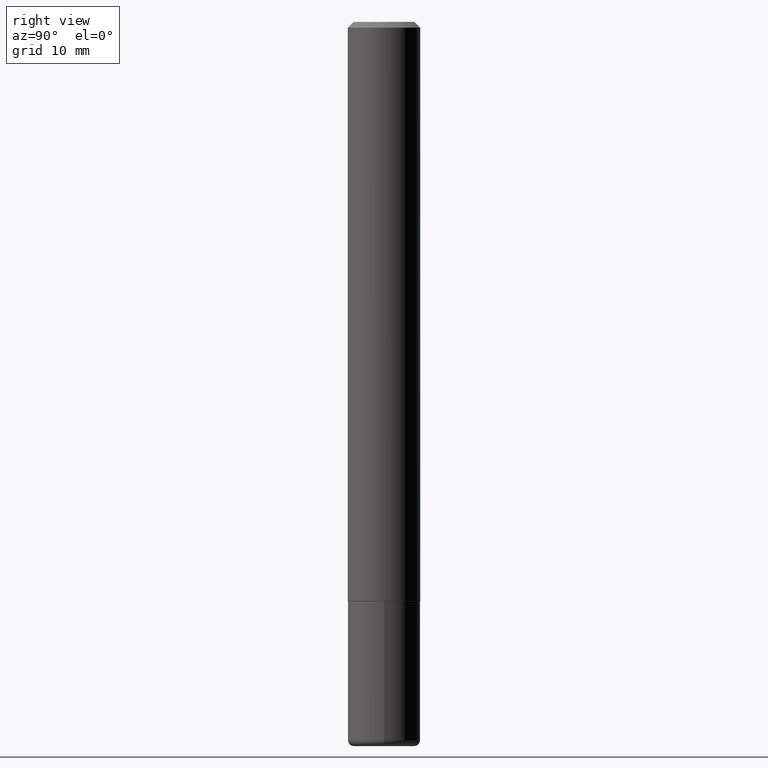
[diagram: clean part render]
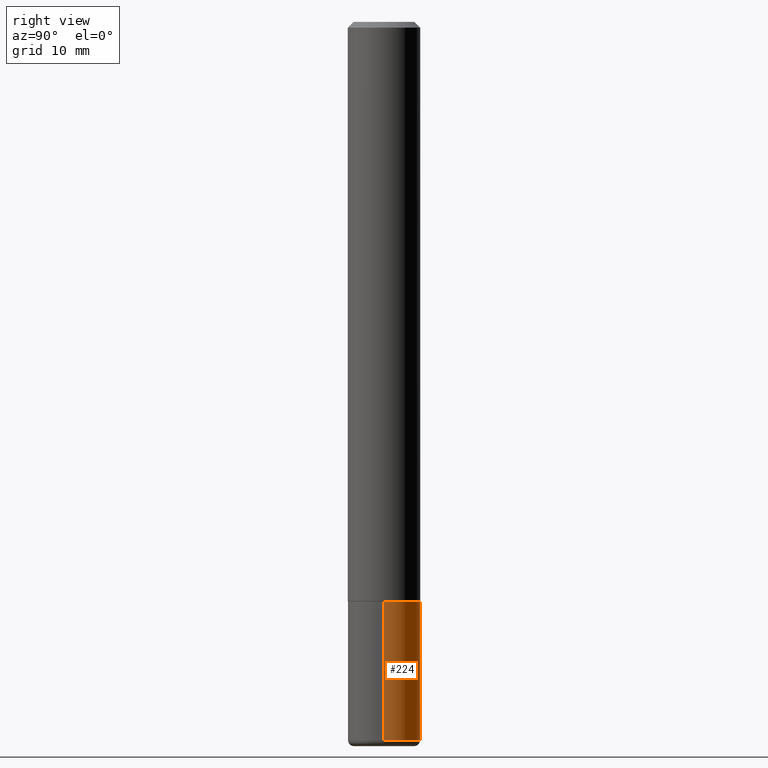
[diagram: same view with one face highlighted and labeled with its STEP entity id]
A machine part, right view. The second image highlights one B-rep face of the part: STEP entity #224.
In plain terms, the highlighted cylindrical surface (edge-blend (fillet) strip) has radius 3.175 mm, axis along (-0, 0, 1).
Its self-contained STEP definition (entity closure, byte-faithful):
#7 = LINE ( 'NONE', #265, #300 ) ;
#18 = CARTESIAN_POINT ( 'NONE',  ( 0.1250000000000000278, -7.855833012397075293E-15, -2.000000000000000000 ) ) ;
#19 = CARTESIAN_POINT ( 'NONE',  ( 4.890937612370273194E-29, -6.982962677686291165E-15, -2.000000000000000000 ) ) ;
#29 = CARTESIAN_POINT ( 'NONE',  ( -0.1249999999999999861, -7.770695300630876412E-15, -2.480000000000000426 ) ) ;
#33 = DIRECTION ( 'NONE',  ( 1.000000000000000000, -6.982962677686261189E-15, 0.000000000000000000 ) ) ;
#70 = VECTOR ( 'NONE', #138, 39.37007874015748143 ) ;
#71 = AXIS2_PLACEMENT_3D ( 'NONE', #19, #178, #103 ) ;
#81 = AXIS2_PLACEMENT_3D ( 'NONE', #404, #276, #145 ) ;
#101 = CIRCLE ( 'NONE', #117, 0.1250000000000000278 ) ;
#102 = ORIENTED_EDGE ( 'NONE', *, *, #209, .T. ) ;
#103 = DIRECTION ( 'NONE',  ( 1.000000000000000000, -6.982962677686269077E-15, 0.000000000000000000 ) ) ;
#117 = AXIS2_PLACEMENT_3D ( 'NONE', #277, #190, #33 ) ;
#121 = EDGE_LOOP ( 'NONE', ( #191, #102, #402, #264 ) ) ;
#138 = DIRECTION ( 'NONE',  ( -2.445468806185136877E-29, 3.491481338843145188E-15, 1.000000000000000000 ) ) ;
#145 = DIRECTION ( 'NONE',  ( 1.000000000000000000, -6.982962677686267499E-15, 4.876176775795935793E-29 ) ) ;
#178 = DIRECTION ( 'NONE',  ( -2.445468806185136597E-29, 3.491481338843145583E-15, 1.000000000000000000 ) ) ;
#179 = CARTESIAN_POINT ( 'NONE',  ( -0.1250000000000000278, -6.932739779308521567E-15, -2.000000000000000000 ) ) ;
#188 = EDGE_CURVE ( 'NONE', #204, #254, #7, .T. ) ;
#190 = DIRECTION ( 'NONE',  ( -2.445468806185136597E-29, 3.491481338843145583E-15, 1.000000000000000000 ) ) ;
#191 = ORIENTED_EDGE ( 'NONE', *, *, #409, .T. ) ;
#204 = VERTEX_POINT ( 'NONE', #307 ) ;
#209 = EDGE_CURVE ( 'NONE', #341, #215, #239, .T. ) ;
#215 = VERTEX_POINT ( 'NONE', #179 ) ;
#224 = ADVANCED_FACE ( 'NONE', ( #275 ), #366, .T. ) ;
#239 = LINE ( 'NONE', #369, #70 ) ;
#254 = VERTEX_POINT ( 'NONE', #18 ) ;
#264 = ORIENTED_EDGE ( 'NONE', *, *, #188, .F. ) ;
#265 = CARTESIAN_POINT ( 'NONE',  ( 0.1250000000000000278, -8.728703347107836346E-16, 6.095220969744921142E-30 ) ) ;
#275 = FACE_OUTER_BOUND ( 'NONE', #121, .T. ) ;
#276 = DIRECTION ( 'NONE',  ( -2.445468806185136597E-29, 3.491481338843145583E-15, 1.000000000000000000 ) ) ;
#277 = CARTESIAN_POINT ( 'NONE',  ( 6.064762639339139522E-29, -8.658873720331001644E-15, -2.480000000000000426 ) ) ;
#297 = EDGE_CURVE ( 'NONE', #254, #215, #337, .T. ) ;
#300 = VECTOR ( 'NONE', #322, 39.37007874015748143 ) ;
#307 = CARTESIAN_POINT ( 'NONE',  ( 0.1249999999999999861, -9.531744055041784983E-15, -2.480000000000000426 ) ) ;
#322 = DIRECTION ( 'NONE',  ( -2.445468806185136877E-29, 3.491481338843145188E-15, 1.000000000000000000 ) ) ;
#337 = CIRCLE ( 'NONE', #71, 0.1250000000000000278 ) ;
#341 = VERTEX_POINT ( 'NONE', #29 ) ;
#366 = CYLINDRICAL_SURFACE ( 'NONE', #81, 0.1250000000000000278 ) ;
#369 = CARTESIAN_POINT ( 'NONE',  ( -0.1250000000000000278, 8.881784197001254296E-16, -6.148668862818634329E-30 ) ) ;
#402 = ORIENTED_EDGE ( 'NONE', *, *, #297, .F. ) ;
#404 = CARTESIAN_POINT ( 'NONE',  ( 0.000000000000000000, 0.000000000000000000, 0.000000000000000000 ) ) ;
#409 = EDGE_CURVE ( 'NONE', #204, #341, #101, .T. ) ;